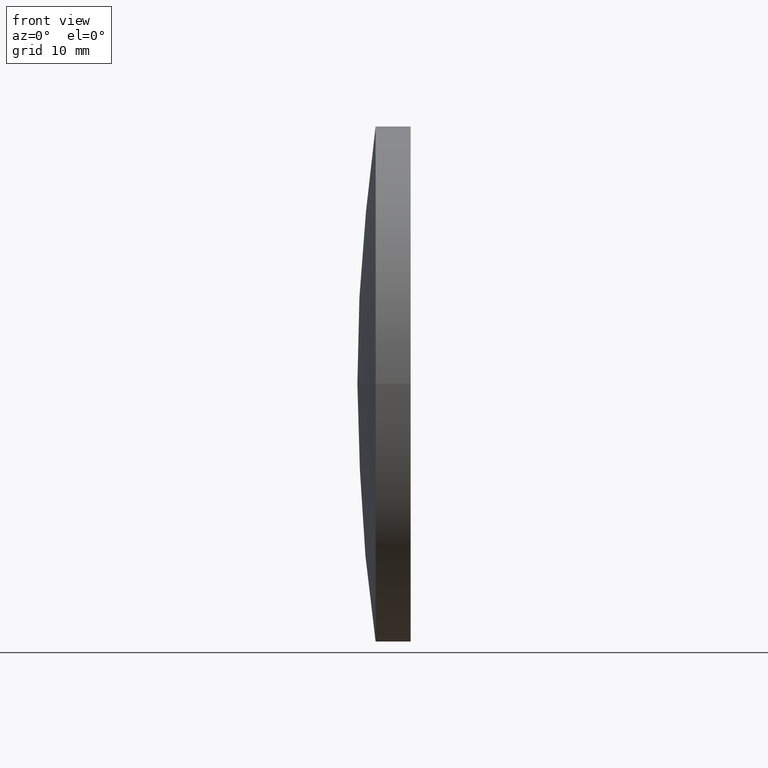
[diagram: clean part render]
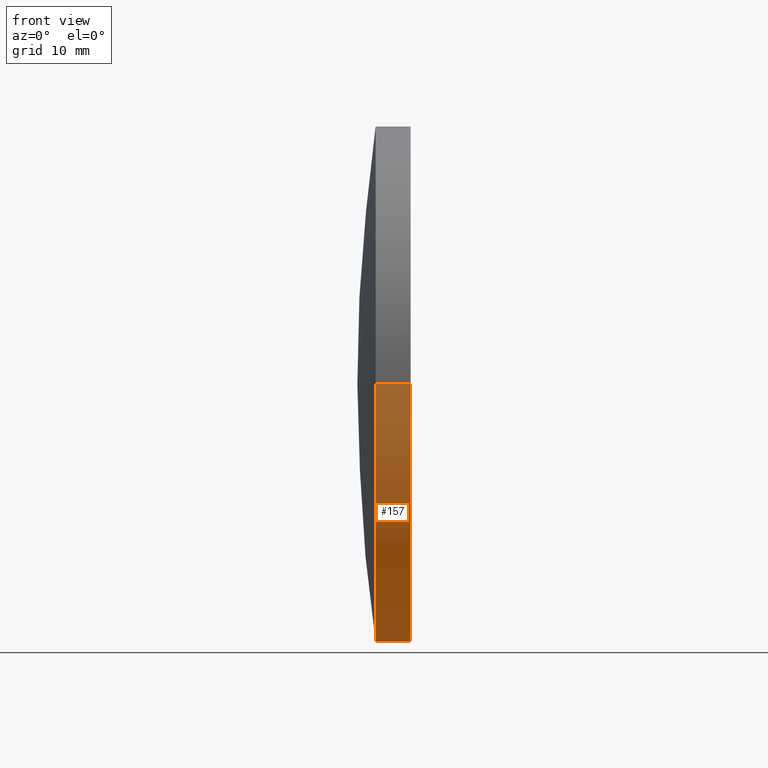
[diagram: same view with one face highlighted and labeled with its STEP entity id]
A machine part, front view. The second image highlights one B-rep face of the part: STEP entity #157.
In plain terms, the highlighted cylindrical surface (partial cylindrical patch) has radius 25 mm, axis along (-1, -0, -0).
Its self-contained STEP definition (entity closure, byte-faithful):
#10 = CIRCLE ( 'NONE', #72, 25.00000000000006400 ) ;
#16 = VERTEX_POINT ( 'NONE', #102 ) ;
#20 = EDGE_LOOP ( 'NONE', ( #69, #190, #25, #24 ) ) ;
#24 = ORIENTED_EDGE ( 'NONE', *, *, #89, .F. ) ;
#25 = ORIENTED_EDGE ( 'NONE', *, *, #76, .T. ) ;
#27 = VERTEX_POINT ( 'NONE', #28 ) ;
#28 = CARTESIAN_POINT ( 'NONE',  ( 247.0464934087960100, 155.4336809418806200, 3.061616997868381100E-015 ) ) ;
#32 = CARTESIAN_POINT ( 'NONE',  ( 250.4363445055402600, 130.4336809418806500, 0.0000000000000000000 ) ) ;
#34 = CARTESIAN_POINT ( 'NONE',  ( 247.0464934087960400, 130.4336809418806500, 0.0000000000000000000 ) ) ;
#43 = EDGE_CURVE ( 'NONE', #79, #135, #10, .T. ) ;
#47 = CARTESIAN_POINT ( 'NONE',  ( 250.4363445055402100, 155.4336809418801400, 0.0000000000000000000 ) ) ;
#49 = DIRECTION ( 'NONE',  ( -1.000000000000000000, -6.937607244762875000E-016, -0.0000000000000000000 ) ) ;
#51 = LINE ( 'NONE', #61, #98 ) ;
#57 = DIRECTION ( 'NONE',  ( 1.110223024625158500E-015, -1.000000000000000000, 0.0000000000000000000 ) ) ;
#60 = DIRECTION ( 'NONE',  ( -1.000000000000000000, -6.937607244762875000E-016, -0.0000000000000000000 ) ) ;
#61 = CARTESIAN_POINT ( 'NONE',  ( 231.8889825959263100, 155.4336809418806800, 3.061616997868385800E-015 ) ) ;
#69 = ORIENTED_EDGE ( 'NONE', *, *, #191, .F. ) ;
#72 = AXIS2_PLACEMENT_3D ( 'NONE', #32, #133, #131 ) ;
#73 = CARTESIAN_POINT ( 'NONE',  ( 250.4363445055402100, 105.4336809418803700, -3.061616997868324700E-015 ) ) ;
#76 = EDGE_CURVE ( 'NONE', #135, #16, #111, .T. ) ;
#79 = VERTEX_POINT ( 'NONE', #47 ) ;
#88 = CIRCLE ( 'NONE', #159, 24.99999999999995400 ) ;
#89 = EDGE_CURVE ( 'NONE', #27, #16, #88, .T. ) ;
#98 = VECTOR ( 'NONE', #136, 1000.000000000000000 ) ;
#102 = CARTESIAN_POINT ( 'NONE',  ( 247.0464934087960700, 105.4336809418807000, 0.0000000000000000000 ) ) ;
#109 = CARTESIAN_POINT ( 'NONE',  ( 231.8889825959263400, 130.4336809418806500, 0.0000000000000000000 ) ) ;
#111 = LINE ( 'NONE', #160, #122 ) ;
#113 = DIRECTION ( 'NONE',  ( 1.110223024625155600E-015, -1.000000000000000000, 0.0000000000000000000 ) ) ;
#119 = DIRECTION ( 'NONE',  ( -1.000000000000000000, -6.937607244762875000E-016, -0.0000000000000000000 ) ) ;
#121 = AXIS2_PLACEMENT_3D ( 'NONE', #109, #60, #113 ) ;
#122 = VECTOR ( 'NONE', #119, 1000.000000000000000 ) ;
#129 = FACE_OUTER_BOUND ( 'NONE', #20, .T. ) ;
#131 = DIRECTION ( 'NONE',  ( 0.0000000000000000000, -1.000000000000000000, 0.0000000000000000000 ) ) ;
#133 = DIRECTION ( 'NONE',  ( -1.000000000000000000, -6.937607244762875000E-016, -0.0000000000000000000 ) ) ;
#135 = VERTEX_POINT ( 'NONE', #73 ) ;
#136 = DIRECTION ( 'NONE',  ( -1.000000000000000000, -6.937607244762875000E-016, -0.0000000000000000000 ) ) ;
#154 = CYLINDRICAL_SURFACE ( 'NONE', #121, 25.00000000000002100 ) ;
#157 = ADVANCED_FACE ( 'NONE', ( #129 ), #154, .T. ) ;
#159 = AXIS2_PLACEMENT_3D ( 'NONE', #34, #49, #57 ) ;
#160 = CARTESIAN_POINT ( 'NONE',  ( 231.8889825959263600, 105.4336809418806200, 0.0000000000000000000 ) ) ;
#190 = ORIENTED_EDGE ( 'NONE', *, *, #43, .T. ) ;
#191 = EDGE_CURVE ( 'NONE', #79, #27, #51, .T. ) ;